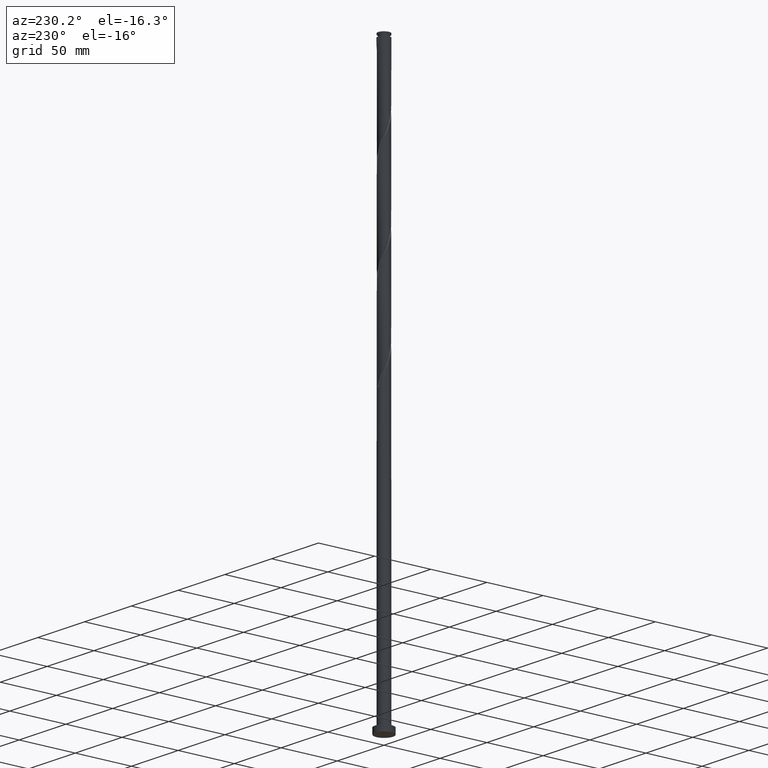
[diagram: clean part render]
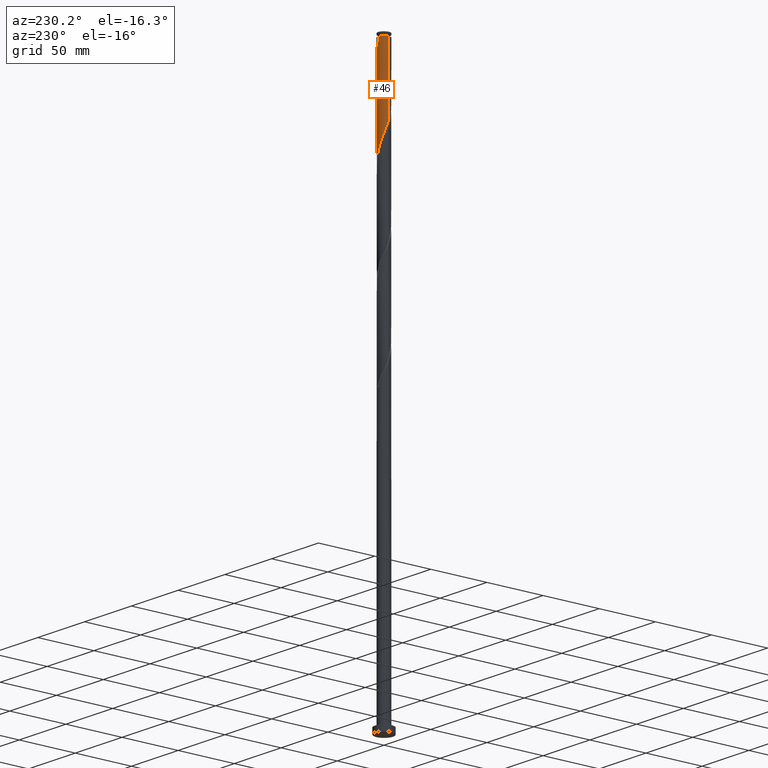
[diagram: same view with one face highlighted and labeled with its STEP entity id]
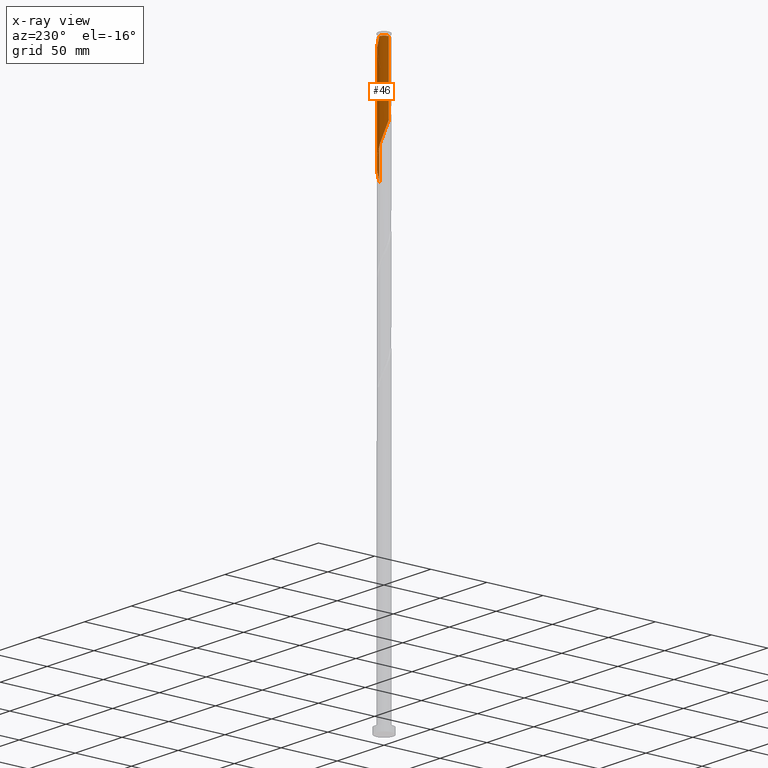
[diagram: x-ray of the same camera — body ghosted, the highlighted face saturated]
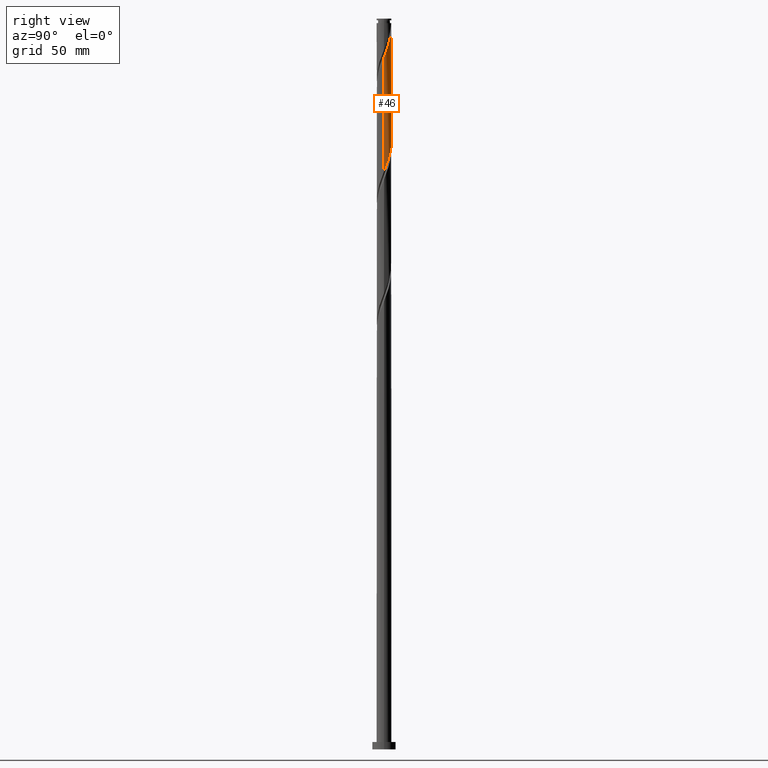
[diagram: same view with one face highlighted and labeled with its STEP entity id]
A machine part, auxiliary view. The second image highlights one B-rep face of the part: STEP entity #46.
The next image is the same camera in x-ray: the body ghosted, the highlighted face saturated — about 0% of this face is hidden behind the body in this view.
A second angle (right view) of the same face is appended — the face is thin or edge-on in the first view.
In plain terms, the highlighted cylindrical surface (edge-blend (fillet) strip) has radius 5.1 mm, axis along (-0, -0, -1).
Its self-contained STEP definition (entity closure, byte-faithful):
#7 = FACE_OUTER_BOUND ( 'NONE', #191, .T. ) ;
#11 = CARTESIAN_POINT ( 'NONE',  ( 3.974353636958184222, 3.235247230719696443, 404.4567176153378227 ) ) ;
#46 = ADVANCED_FACE ( 'NONE', ( #7 ), #1147, .T. ) ;
#58 = VERTEX_POINT ( 'NONE', #354 ) ;
#84 = VECTOR ( 'NONE', #88, 1000.000000000000000 ) ;
#88 = DIRECTION ( 'NONE',  ( -0.000000000000000000, -0.000000000000000000, -1.000000000000000000 ) ) ;
#191 = EDGE_LOOP ( 'NONE', ( #1662, #1348, #1742, #1406, #1651 ) ) ;
#209 = CARTESIAN_POINT ( 'NONE',  ( -5.099999999999953459, 0.000000000000000000, 496.9046342820045083 ) ) ;
#272 = CARTESIAN_POINT ( 'NONE',  ( 0.4819771844422329754, 5.101961335521803420, 492.9983842820045652 ) ) ;
#279 = DIRECTION ( 'NONE',  ( -0.000000000000000000, -0.000000000000000000, -1.000000000000000000 ) ) ;
#316 = CARTESIAN_POINT ( 'NONE',  ( -3.948440793195336695, 3.266822122202736267, 427.8942176153379364 ) ) ;
#349 = CARTESIAN_POINT ( 'NONE',  ( 4.251753303623353020, 2.816486081117374418, 403.1546342820044515 ) ) ;
#354 = CARTESIAN_POINT ( 'NONE',  ( 5.100000000000011191, 4.827319550253835716E-16, 473.4144373040076061 ) ) ;
#359 = CARTESIAN_POINT ( 'NONE',  ( 3.266822122202736267, 3.948440793195335807, 407.0608842820043947 ) ) ;
#419 = CARTESIAN_POINT ( 'NONE',  ( -5.100000000000001421, 2.809183127157574852E-13, 437.0614979266672435 ) ) ;
#424 = CARTESIAN_POINT ( 'NONE',  ( 4.998000000000005549, 1.014887185848757145, 476.0713009486711940 ) ) ;
#434 = CARTESIAN_POINT ( 'NONE',  ( -4.703970163558070183, 1.970447842586927845, 431.8004676153379364 ) ) ;
#494 = EDGE_CURVE ( 'NONE', #58, #1799, #1379, .T. ) ;
#499 =( BOUNDED_CURVE ( )  B_SPLINE_CURVE ( 2, ( #1438, #1235, #2034, #2082, #635, #1284, #434, #1761, #1925, #316, #1711, #1403, #604, #1249, #1084, #1724, #503, #1485, #1160, #1470, #1326, #648, #1792, #1296, #1803, #359, #842, #11, #349, #1152, #804, #1971, #668, #981, #998 ),
 .UNSPECIFIED., .F., .T. ) 
 B_SPLINE_CURVE_WITH_KNOTS ( ( 3, 2, 2, 2, 2, 2, 2, 2, 2, 2, 2, 2, 2, 2, 2, 2, 2, 3 ),
 ( 0.4295286902180893707, 0.4296875000000000000, 0.4375000000000000000, 0.4453125000000000000, 0.4531250000000000000, 0.4609375000000000000, 0.4687500000000000000, 0.4765625000000000000, 0.4843750000000000000, 0.4921875000000000000, 0.5000000000000000000, 0.5078125000000000000, 0.5156250000000000000, 0.5234375000000000000, 0.5312500000000000000, 0.5390625000000000000, 0.5468750000000000000, 0.5545286902180870392 ),
 .UNSPECIFIED. ) 
 CURVE ( )  GEOMETRIC_REPRESENTATION_ITEM ( )  RATIONAL_B_SPLINE_CURVE ( ( 0.9089165573359524464, 0.9090019243628560952, 0.9090909090909466972, 0.9047133878838528043, 0.9090909090909466972, 0.9047133878838528043, 0.9090909090909466972, 0.9047133878838528043, 0.9090909090909466972, 0.9047133878838528043, 0.9090909090909466972, 0.9047133878838528043, 0.9090909090909466972, 0.9047133878838528043, 0.9090909090909466972, 0.9047133878838528043, 0.9090909090909466972, 0.9047133878838528043, 0.9090909090909466972, 0.9047133878838528043, 0.9090909090909466972, 0.9047133878838528043, 0.9090909090909466972, 0.9047133878838528043, 0.9090909090909466972, 0.9047133878838528043, 0.9090909090909466972, 0.9047133878838528043, 0.9090909090909466972, 0.9047133878838528043, 0.9090909090909466972, 0.9047133878838528043, 0.9090909090909466972, 0.9048023726119447385, 0.9089165573359498929 ) ) 
 REPRESENTATION_ITEM ( '' )  );
#503 = CARTESIAN_POINT ( 'NONE',  ( -0.9750182961470735821, 5.005930415235359199, 418.7796342820045083 ) ) ;
#511 = CARTESIAN_POINT ( 'NONE',  ( -1.014887185848795115, 4.998000000000001108, 496.9046342820046789 ) ) ;
#593 = CARTESIAN_POINT ( 'NONE',  ( 4.703970163558077289, 1.970447842586929843, 478.6754676153378227 ) ) ;
#604 = CARTESIAN_POINT ( 'NONE',  ( -2.816486081117375750, 4.251753303623353020, 423.9879676153378796 ) ) ;
#616 = CARTESIAN_POINT ( 'NONE',  ( 5.097957663183454891, 0.5226271518696510299, 474.7692176153378227 ) ) ;
#635 = CARTESIAN_POINT ( 'NONE',  ( -4.998000000000001108, 1.014887185848757145, 434.4046342820045083 ) ) ;
#648 = CARTESIAN_POINT ( 'NONE',  ( 1.507147219827863038, 4.898042336816551767, 412.2692176153378227 ) ) ;
#668 = CARTESIAN_POINT ( 'NONE',  ( 5.005930415235359199, 0.9750182961470745813, 397.9463009486711371 ) ) ;
#669 = AXIS2_PLACEMENT_3D ( 'NONE', #1157, #984, #1586 ) ;
#761 = CARTESIAN_POINT ( 'NONE',  ( -5.100000000000001421, 0.000000000000000000, 500.0000000000000000 ) ) ;
#780 = CARTESIAN_POINT ( 'NONE',  ( 5.099959499352630488, 0.02032498371370667495, 473.4671342820045083 ) ) ;
#801 = AXIS2_PLACEMENT_3D ( 'NONE', #1119, #1549, #2071 ) ;
#804 = CARTESIAN_POINT ( 'NONE',  ( 4.719526232618723505, 1.932892169683482653, 400.5504676153378796 ) ) ;
#842 = CARTESIAN_POINT ( 'NONE',  ( 3.620587879580457802, 3.591844011957518124, 405.7588009486711371 ) ) ;
#889 = CARTESIAN_POINT ( 'NONE',  ( 5.100000000000001421, 6.245698675651502811E-16, 500.0000000000000000 ) ) ;
#902 = CARTESIAN_POINT ( 'NONE',  ( 4.229169391747468865, 2.850285293774368345, 481.2796342820045652 ) ) ;
#939 = CARTESIAN_POINT ( 'NONE',  ( 3.591844011957526117, 3.620587879580462687, 483.8838009486711371 ) ) ;
#981 = CARTESIAN_POINT ( 'NONE',  ( 5.099999999999998757, 0.4920470561378130769, 396.6708113654173644 ) ) ;
#984 = DIRECTION ( 'NONE',  ( -0.000000000000000000, -0.000000000000000000, -1.000000000000000000 ) ) ;
#998 = CARTESIAN_POINT ( 'NONE',  ( 5.100000000000002309, 3.671744986100435593E-15, 395.3948312600013537 ) ) ;
#1062 = CARTESIAN_POINT ( 'NONE',  ( 1.468059407851920684, 4.909899494948929188, 490.3942176153378227 ) ) ;
#1073 = CARTESIAN_POINT ( 'NONE',  ( 3.948440793195344689, 3.266822122202739820, 482.5817176153377659 ) ) ;
#1084 = CARTESIAN_POINT ( 'NONE',  ( -1.932892169683484429, 4.719526232618722617, 421.3838009486711940 ) ) ;
#1119 = CARTESIAN_POINT ( 'NONE',  ( 0.000000000000000000, 0.000000000000000000, 496.9046342820045083 ) ) ;
#1147 = CYLINDRICAL_SURFACE ( 'NONE', #669, 5.100000000000001421 ) ;
#1148 = EDGE_CURVE ( 'NONE', #58, #1787, #1825, .T. ) ;
#1152 = CARTESIAN_POINT ( 'NONE',  ( 4.529152970288523150, 2.397724931515053282, 401.8525509486712508 ) ) ;
#1157 = CARTESIAN_POINT ( 'NONE',  ( 0.000000000000000000, 0.000000000000000000, 500.0000000000000000 ) ) ;
#1160 = CARTESIAN_POINT ( 'NONE',  ( 0.02032498371370980092, 5.099959499352621606, 416.1754676153378796 ) ) ;
#1216 = CARTESIAN_POINT ( 'NONE',  ( 3.235247230719704437, 3.974353636958188218, 485.1858842820044515 ) ) ;
#1235 = CARTESIAN_POINT ( 'NONE',  ( -5.100000000000001421, 0.01016253220887129716, 437.0351443721504552 ) ) ;
#1249 = CARTESIAN_POINT ( 'NONE',  ( -2.397724931515051505, 4.529152970288524038, 422.6858842820045083 ) ) ;
#1262 = CARTESIAN_POINT ( 'NONE',  ( 2.397724931515060387, 4.529152970288527591, 487.7900509486711940 ) ) ;
#1284 = CARTESIAN_POINT ( 'NONE',  ( -4.898042336816550879, 1.507147219827864371, 433.1025509486711371 ) ) ;
#1296 = CARTESIAN_POINT ( 'NONE',  ( 2.433748465345991541, 4.509897990299585047, 409.6650509486710803 ) ) ;
#1306 = CARTESIAN_POINT ( 'NONE',  ( 5.100000000000002309, 3.671744986100435593E-15, 395.3948312600013537 ) ) ;
#1326 = CARTESIAN_POINT ( 'NONE',  ( 1.014887185848758255, 4.998000000000001108, 413.5713009486711371 ) ) ;
#1348 = ORIENTED_EDGE ( 'NONE', *, *, #1148, .T. ) ;
#1379 =( BOUNDED_CURVE ( )  B_SPLINE_CURVE ( 2, ( #2072, #2026, #780, #616, #424, #1417, #593, #2060, #902, #1073, #939, #1216, #1712, #1262, #1550, #1062, #1540, #272, #1572, #1725, #1901 ),
 .UNSPECIFIED., .F., .T. ) 
 B_SPLINE_CURVE_WITH_KNOTS ( ( 3, 2, 2, 2, 2, 2, 2, 2, 2, 2, 3 ),
 ( 0.6795286902180870392, 0.6796875000000000000, 0.6875000000000000000, 0.6953125000000000000, 0.7031250000000000000, 0.7109375000000000000, 0.7187500000000000000, 0.7265625000000000000, 0.7343750000000000000, 0.7421875000000000000, 0.7500000000000000000 ),
 .UNSPECIFIED. ) 
 CURVE ( )  GEOMETRIC_REPRESENTATION_ITEM ( )  RATIONAL_B_SPLINE_CURVE ( ( 0.9089165573359564432, 0.9090019243628613133, 0.9090909090909532475, 0.9047133878838593546, 0.9090909090909532475, 0.9047133878838593546, 0.9090909090909532475, 0.9047133878838593546, 0.9090909090909532475, 0.9047133878838593546, 0.9090909090909532475, 0.9047133878838593546, 0.9090909090909532475, 0.9047133878838593546, 0.9090909090909532475, 0.9047133878838593546, 0.9090909090909532475, 0.9047133878838593546, 0.9090909090909532475, 0.9047133878838593546, 0.9090909090909532475 ) ) 
 REPRESENTATION_ITEM ( '' )  );
#1403 = CARTESIAN_POINT ( 'NONE',  ( -3.235247230719698219, 3.974353636958182445, 425.2900509486711371 ) ) ;
#1406 = ORIENTED_EDGE ( 'NONE', *, *, #1959, .F. ) ;
#1417 = CARTESIAN_POINT ( 'NONE',  ( 4.898042336816559761, 1.507147219827863038, 477.3733842820044515 ) ) ;
#1438 = CARTESIAN_POINT ( 'NONE',  ( -5.100000000000001421, 2.809183127157574852E-13, 437.0614979266672435 ) ) ;
#1459 = EDGE_CURVE ( 'NONE', #1938, #1799, #1529, .T. ) ;
#1470 = CARTESIAN_POINT ( 'NONE',  ( 0.5226271518696500307, 5.097957663183446897, 414.8733842820044515 ) ) ;
#1485 = CARTESIAN_POINT ( 'NONE',  ( -0.4819771844422305884, 5.101961335521795426, 417.4775509486710803 ) ) ;
#1489 = EDGE_CURVE ( 'NONE', #1948, #1787, #499, .T. ) ;
#1494 = LINE ( 'NONE', #761, #2047 ) ;
#1529 = CIRCLE ( 'NONE', #801, 5.099999999999953459 ) ;
#1540 = CARTESIAN_POINT ( 'NONE',  ( 0.9750182961470791332, 5.005930415235366304, 491.6963009486712508 ) ) ;
#1549 = DIRECTION ( 'NONE',  ( -0.000000000000000000, -0.000000000000000000, -1.000000000000000000 ) ) ;
#1550 = CARTESIAN_POINT ( 'NONE',  ( 1.932892169683488426, 4.719526232618731498, 489.0921342820045652 ) ) ;
#1572 = CARTESIAN_POINT ( 'NONE',  ( -0.02032498371370645984, 5.099959499352630488, 494.3004676153377659 ) ) ;
#1586 = DIRECTION ( 'NONE',  ( -1.000000000000000000, 0.000000000000000000, 0.000000000000000000 ) ) ;
#1651 = ORIENTED_EDGE ( 'NONE', *, *, #1459, .T. ) ;
#1662 = ORIENTED_EDGE ( 'NONE', *, *, #494, .F. ) ;
#1711 = CARTESIAN_POINT ( 'NONE',  ( -3.591844011957518124, 3.620587879580459134, 426.5921342820044515 ) ) ;
#1712 = CARTESIAN_POINT ( 'NONE',  ( 2.816486081117381968, 4.251753303623358349, 486.4879676153377659 ) ) ;
#1724 = CARTESIAN_POINT ( 'NONE',  ( -1.468059407851916243, 4.909899494948922971, 420.0817176153377659 ) ) ;
#1725 = CARTESIAN_POINT ( 'NONE',  ( -0.5226271518696506968, 5.097957663183454891, 495.6025509486711940 ) ) ;
#1742 = ORIENTED_EDGE ( 'NONE', *, *, #1489, .F. ) ;
#1761 = CARTESIAN_POINT ( 'NONE',  ( -4.509897990299586823, 2.433748465345991541, 430.4983842820044515 ) ) ;
#1787 = VERTEX_POINT ( 'NONE', #1306 ) ;
#1792 = CARTESIAN_POINT ( 'NONE',  ( 1.970447842586929843, 4.703970163558069295, 410.9671342820044515 ) ) ;
#1799 = VERTEX_POINT ( 'NONE', #511 ) ;
#1803 = CARTESIAN_POINT ( 'NONE',  ( 2.850285293774366568, 4.229169391747459095, 408.3629676153377659 ) ) ;
#1825 = LINE ( 'NONE', #889, #84 ) ;
#1901 = CARTESIAN_POINT ( 'NONE',  ( -1.014887185848795115, 4.998000000000001108, 496.9046342820046220 ) ) ;
#1925 = CARTESIAN_POINT ( 'NONE',  ( -4.229169391747461759, 2.850285293774363016, 429.1963009486711371 ) ) ;
#1938 = VERTEX_POINT ( 'NONE', #209 ) ;
#1948 = VERTEX_POINT ( 'NONE', #419 ) ;
#1959 = EDGE_CURVE ( 'NONE', #1938, #1948, #1494, .T. ) ;
#1971 = CARTESIAN_POINT ( 'NONE',  ( 4.909899494948922971, 1.468059407851915577, 399.2483842820043947 ) ) ;
#2026 = CARTESIAN_POINT ( 'NONE',  ( 5.100000000000009415, 0.01016253220871875425, 473.4407908585248492 ) ) ;
#2034 = CARTESIAN_POINT ( 'NONE',  ( -5.099959499352621606, 0.02032498371371001950, 437.0088009486711940 ) ) ;
#2047 = VECTOR ( 'NONE', #279, 1000.000000000000000 ) ;
#2060 = CARTESIAN_POINT ( 'NONE',  ( 4.509897990299594817, 2.433748465345992873, 479.9775509486711940 ) ) ;
#2071 = DIRECTION ( 'NONE',  ( -1.000000000000000000, 0.000000000000000000, 0.000000000000000000 ) ) ;
#2072 = CARTESIAN_POINT ( 'NONE',  ( 5.100000000000011191, 4.827319550253835716E-16, 473.4144373040075493 ) ) ;
#2082 = CARTESIAN_POINT ( 'NONE',  ( -5.097957663183446897, 0.5226271518696499196, 435.7067176153377659 ) ) ;